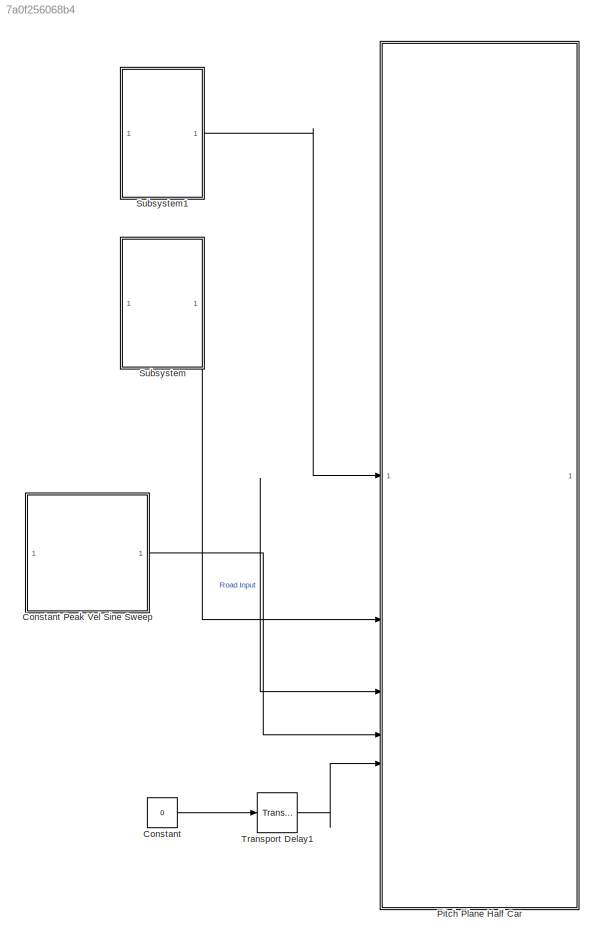
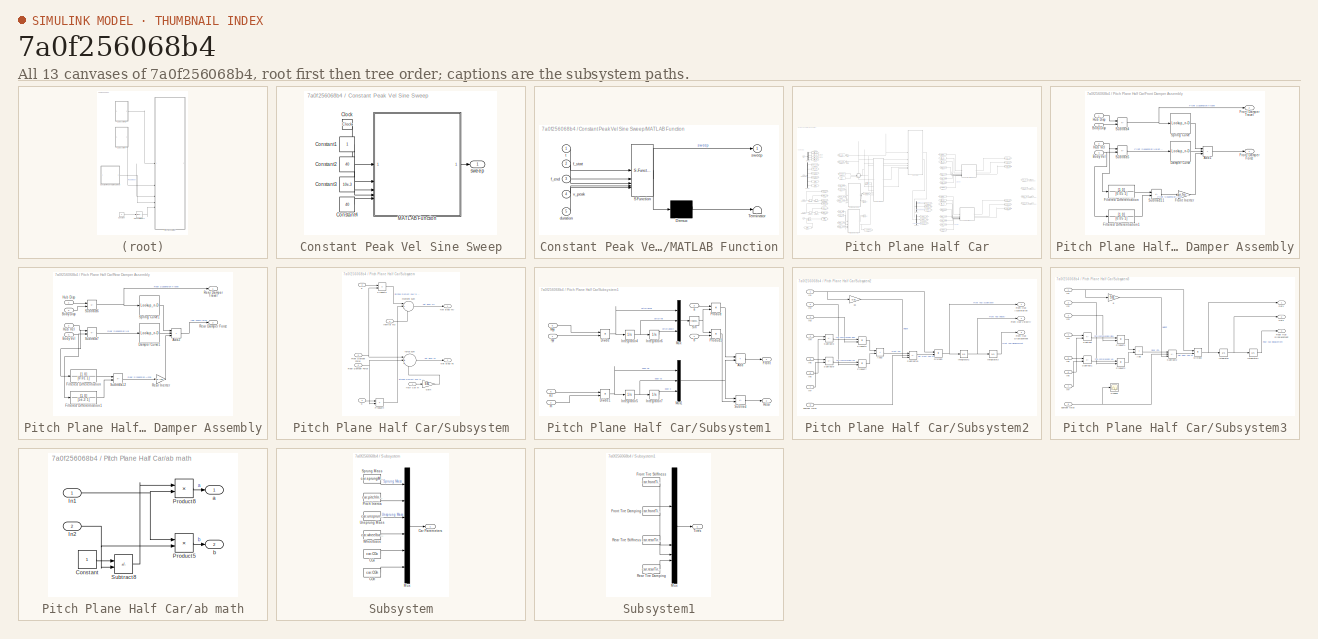
[diagram: thumbnail index - all 13 canvases of the model, root first then tree order]
MODEL slx_7a0f256068b4
KIND model
CONFIG AbsTol = auto
CONFIG EnableMultiTasking = off
CONFIG FixedStep = 1e-3
CONFIG MaxStep = 0.01
CONFIG MinStep = auto
CONFIG RelTol = 5e-5
CONFIG SampleTimeConstraint = Unconstrained
CONFIG SolverName = VariableStepAuto
CONFIG StartTime = 0.0
CONFIG StopTime = 40.0
BLOCK [Constant] Constant
  Value = 0
BLOCK [SubSystem] Constant Peak Vel Sine Sweep
BLOCK [Clock] Constant Peak Vel Sine Sweep/Clock
BLOCK [Constant] Constant Peak Vel Sine Sweep/Constant1
BLOCK [Constant] Constant Peak Vel Sine Sweep/Constant2
  Value = 40
BLOCK [Constant] Constant Peak Vel Sine Sweep/Constant3
  Value = 10e-3
BLOCK [Constant] Constant Peak Vel Sine Sweep/Constant4
  Value = 40
BLOCK [SubSystem] Constant Peak Vel Sine Sweep/MATLAB Function
  ErrorFcn = Stateflow.Translate.translate
  PermitHierarchicalResolution = ExplicitOnly
  SFBlockType = MATLAB Function
  TreatAsAtomicUnit = on
BLOCK [Demux] Constant Peak Vel Sine Sweep/MATLAB Function/ Demux 
  Outputs = 1
BLOCK [S-Function] Constant Peak Vel Sine Sweep/MATLAB Function/ SFunction 
  EnableBusSupport = on
  FunctionName = sf_sfun
  PortCounts = [5 2]
  SFcnIsStateOwnerBlock = off
  SFunctionDeploymentMode = off
  Tag = Stateflow S-Function 2
BLOCK [Terminator] Constant Peak Vel Sine Sweep/MATLAB Function/ Terminator 
BLOCK [Inport] Constant Peak Vel Sine Sweep/MATLAB Function/duration
  Port = 5
BLOCK [Inport] Constant Peak Vel Sine Sweep/MATLAB Function/f_end
  Port = 3
BLOCK [Inport] Constant Peak Vel Sine Sweep/MATLAB Function/f_start
  Port = 2
BLOCK [Outport] Constant Peak Vel Sine Sweep/MATLAB Function/sweep
BLOCK [Inport] Constant Peak Vel Sine Sweep/MATLAB Function/t
BLOCK [Inport] Constant Peak Vel Sine Sweep/MATLAB Function/v_peak
  Port = 4
BLOCK [Outport] Constant Peak Vel Sine Sweep/sweep
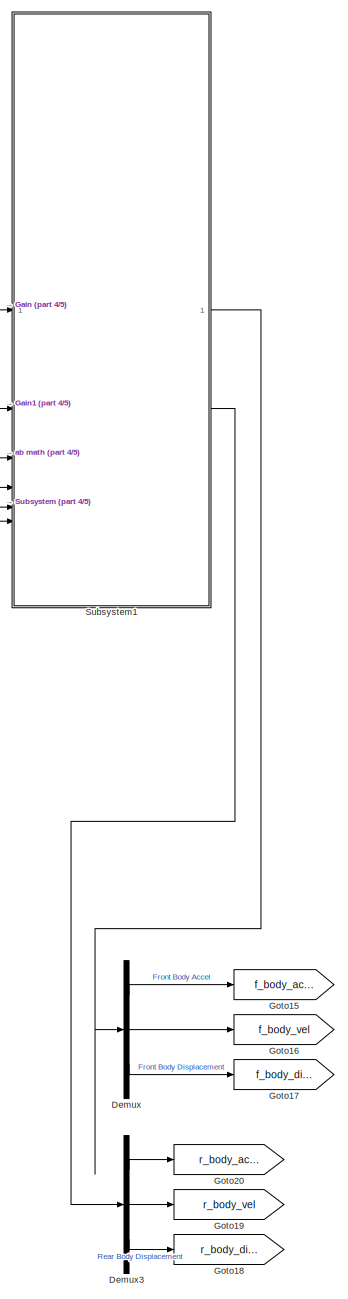
[diagram: Pitch Plane Half Car - part 1/5, center side, full height]
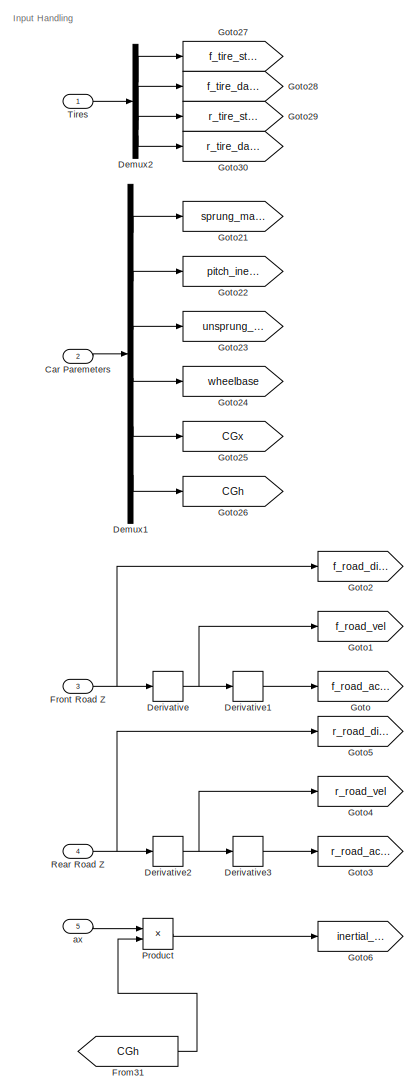
[diagram: Pitch Plane Half Car - part 2/5, left side, full height]
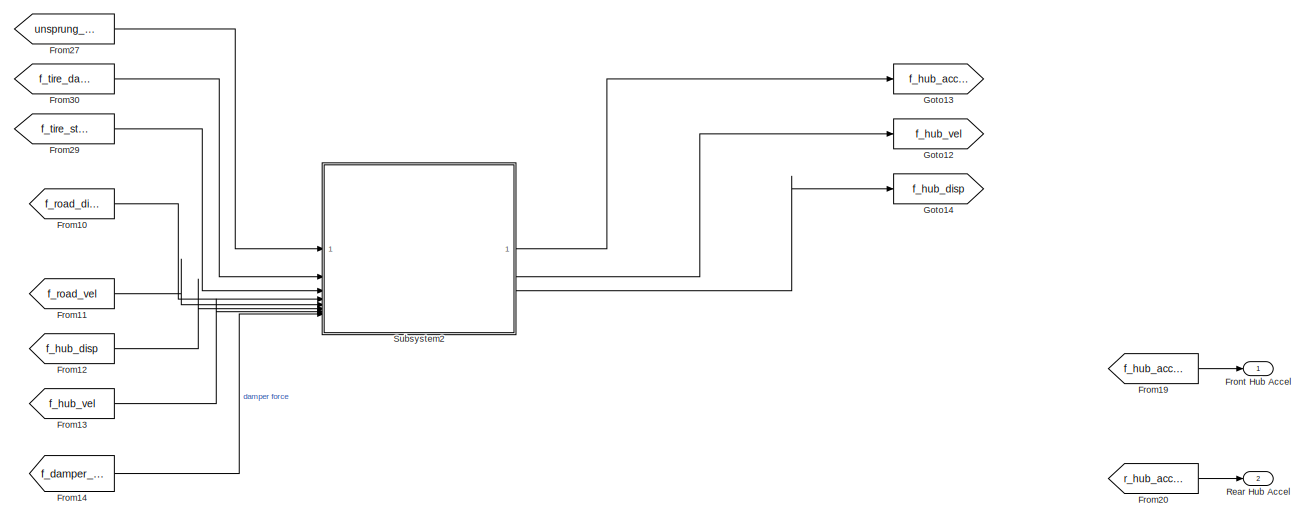
[diagram: Pitch Plane Half Car - part 3/5, middle right region]
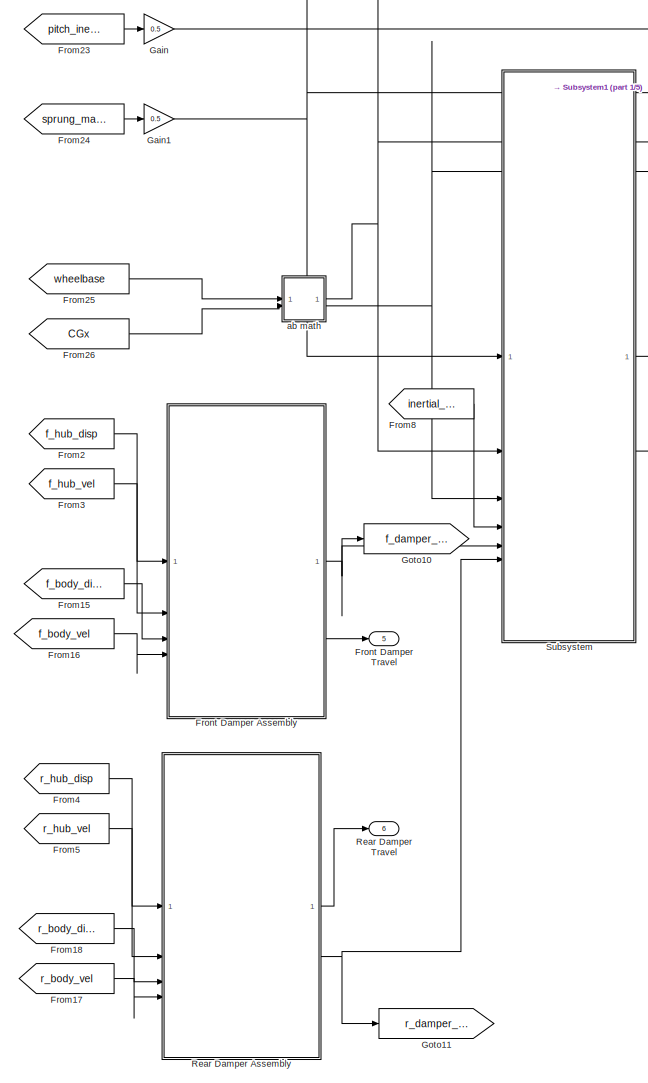
[diagram: Pitch Plane Half Car - part 4/5, left side, full height]
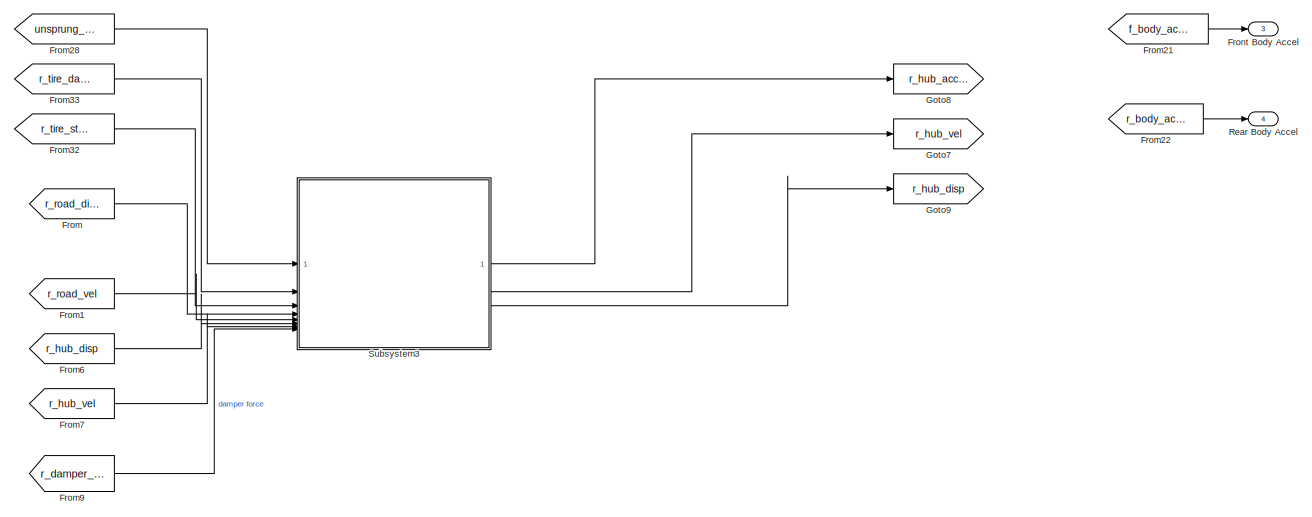
[diagram: Pitch Plane Half Car - part 5/5, bottom right region]
BLOCK [SubSystem] Pitch Plane Half Car
BLOCK [Inport] Pitch Plane Half Car/Car Paremeters
  Port = 2
BLOCK [Demux] Pitch Plane Half Car/Demux
  Outputs = 3
BLOCK [Demux] Pitch Plane Half Car/Demux1
  Outputs = 6
BLOCK [Demux] Pitch Plane Half Car/Demux2
BLOCK [Demux] Pitch Plane Half Car/Demux3
  Outputs = 3
BLOCK [Derivative] Pitch Plane Half Car/Derivative
BLOCK [Derivative] Pitch Plane Half Car/Derivative1
BLOCK [Derivative] Pitch Plane Half Car/Derivative2
BLOCK [Derivative] Pitch Plane Half Car/Derivative3
BLOCK [From] Pitch Plane Half Car/From
  GotoTag = r_road_disp
BLOCK [From] Pitch Plane Half Car/From1
  GotoTag = r_road_vel
BLOCK [From] Pitch Plane Half Car/From10
  GotoTag = f_road_disp
BLOCK [From] Pitch Plane Half Car/From11
  GotoTag = f_road_vel
BLOCK [From] Pitch Plane Half Car/From12
  GotoTag = f_hub_disp
BLOCK [From] Pitch Plane Half Car/From13
  GotoTag = f_hub_vel
BLOCK [From] Pitch Plane Half Car/From14
  GotoTag = f_damper_force
BLOCK [From] Pitch Plane Half Car/From15
  GotoTag = f_body_disp
BLOCK [From] Pitch Plane Half Car/From16
  GotoTag = f_body_vel
BLOCK [From] Pitch Plane Half Car/From17
  GotoTag = r_body_vel
BLOCK [From] Pitch Plane Half Car/From18
  GotoTag = r_body_disp
BLOCK [From] Pitch Plane Half Car/From19
  GotoTag = f_hub_accel
BLOCK [From] Pitch Plane Half Car/From2
  GotoTag = f_hub_disp
BLOCK [From] Pitch Plane Half Car/From20
  GotoTag = r_hub_accel
BLOCK [From] Pitch Plane Half Car/From21
  GotoTag = f_body_accel
BLOCK [From] Pitch Plane Half Car/From22
  GotoTag = r_body_accel
BLOCK [From] Pitch Plane Half Car/From23
  GotoTag = pitch_inertia
BLOCK [From] Pitch Plane Half Car/From24
  GotoTag = sprung_mass
BLOCK [From] Pitch Plane Half Car/From25
  GotoTag = wheelbase
BLOCK [From] Pitch Plane Half Car/From26
  GotoTag = CGx
BLOCK [From] Pitch Plane Half Car/From27
  GotoTag = unsprung_mass
BLOCK [From] Pitch Plane Half Car/From28
  GotoTag = unsprung_mass
BLOCK [From] Pitch Plane Half Car/From29
  GotoTag = f_tire_stiffness
BLOCK [From] Pitch Plane Half Car/From3
  GotoTag = f_hub_vel
BLOCK [From] Pitch Plane Half Car/From30
  GotoTag = f_tire_damping
BLOCK [From] Pitch Plane Half Car/From31
  GotoTag = CGh
BLOCK [From] Pitch Plane Half Car/From32
  GotoTag = r_tire_stiffness
BLOCK [From] Pitch Plane Half Car/From33
  GotoTag = r_tire_damping
BLOCK [From] Pitch Plane Half Car/From4
  GotoTag = r_hub_disp
BLOCK [From] Pitch Plane Half Car/From5
  GotoTag = r_hub_vel
BLOCK [From] Pitch Plane Half Car/From6
  GotoTag = r_hub_disp
BLOCK [From] Pitch Plane Half Car/From7
  GotoTag = r_hub_vel
BLOCK [From] Pitch Plane Half Car/From8
  GotoTag = inertial_Mz
BLOCK [From] Pitch Plane Half Car/From9
  GotoTag = r_damper_force
BLOCK [Outport] Pitch Plane Half Car/Front Body Accel
  Port = 3
BLOCK [SubSystem] Pitch Plane Half Car/Front Damper Assembly
BLOCK [Sum] Pitch Plane Half Car/Front Damper Assembly/Add1
  IconShape = rectangular
  Inputs = +++
BLOCK [Inport] Pitch Plane Half Car/Front Damper Assembly/Body Disp
  Port = 3
BLOCK [Inport] Pitch Plane Half Car/Front Damper Assembly/Body Vel
  Port = 4
BLOCK [Lookup_n-D] Pitch Plane Half Car/Front Damper Assembly/Damper Curve
  BeginIndexSearchUsingPreviousIndexResult = on
  BreakpointsForDimension1 = f_damper_curve_x
  DiagnosticForOutOfRangeInput = Warning
  IndexSearchMethod = Linear search
  InputPortMap = u0
  InternalRulePriority = Speed
  NumberOfTableDimensions = 1
  RndMeth = Simplest
  Table = f_damper_curve_y
BLOCK [TransferFcn] Pitch Plane Half Car/Front Damper Assembly/Filtered Differentiation
  Denominator = [0.05 1]
  Numerator = [1 0]
BLOCK [TransferFcn] Pitch Plane Half Car/Front Damper Assembly/Filtered Differentiation1
  Denominator = [0.05 1]
  Numerator = [1 0]
BLOCK [Outport] Pitch Plane Half Car/Front Damper Assembly/Front Damper Force
BLOCK [Outport] Pitch Plane Half Car/Front Damper Assembly/Front Damper Travel
  Port = 2
BLOCK [Gain] Pitch Plane Half Car/Front Damper Assembly/Front Inerter
  Gain = car.frontInertance
BLOCK [Inport] Pitch Plane Half Car/Front Damper Assembly/Hub Disp
BLOCK [Inport] Pitch Plane Half Car/Front Damper Assembly/Hub Vel
  Port = 2
BLOCK [Lookup_n-D] Pitch Plane Half Car/Front Damper Assembly/Spring Curve
  BreakpointsForDimension1 = f_spring_curve_x
  InputPortMap = u0
  InternalRulePriority = Speed
  InterpMethod = Linear Lagrange
  NumberOfTableDimensions = 1
  RndMeth = Simplest
  Table = f_spring_curve_y
BLOCK [Sum] Pitch Plane Half Car/Front Damper Assembly/Subtract11
  IconShape = rectangular
  Inputs = +-
BLOCK [Sum] Pitch Plane Half Car/Front Damper Assembly/Subtract4
  IconShape = rectangular
  Inputs = +-
BLOCK [Sum] Pitch Plane Half Car/Front Damper Assembly/Subtract5
  IconShape = rectangular
  Inputs = +-
BLOCK [Outport] Pitch Plane Half Car/Front Damper Travel
  Port = 5
BLOCK [Outport] Pitch Plane Half Car/Front Hub Accel
BLOCK [Inport] Pitch Plane Half Car/Front Road Z
  Port = 3
BLOCK [Gain] Pitch Plane Half Car/Gain
  Gain = 0.5
BLOCK [Gain] Pitch Plane Half Car/Gain1
  Gain = 0.5
BLOCK [Goto] Pitch Plane Half Car/Goto
  GotoTag = f_road_accel
BLOCK [Goto] Pitch Plane Half Car/Goto1
  GotoTag = f_road_vel
BLOCK [Goto] Pitch Plane Half Car/Goto10
  GotoTag = f_damper_force
BLOCK [Goto] Pitch Plane Half Car/Goto11
  GotoTag = r_damper_force
BLOCK [Goto] Pitch Plane Half Car/Goto12
  GotoTag = f_hub_vel
BLOCK [Goto] Pitch Plane Half Car/Goto13
  GotoTag = f_hub_accel
BLOCK [Goto] Pitch Plane Half Car/Goto14
  GotoTag = f_hub_disp
BLOCK [Goto] Pitch Plane Half Car/Goto15
  GotoTag = f_body_accel
BLOCK [Goto] Pitch Plane Half Car/Goto16
  GotoTag = f_body_vel
BLOCK [Goto] Pitch Plane Half Car/Goto17
  GotoTag = f_body_disp
BLOCK [Goto] Pitch Plane Half Car/Goto18
  GotoTag = r_body_disp
BLOCK [Goto] Pitch Plane Half Car/Goto19
  GotoTag = r_body_vel
BLOCK [Goto] Pitch Plane Half Car/Goto2
  GotoTag = f_road_disp
BLOCK [Goto] Pitch Plane Half Car/Goto20
  GotoTag = r_body_accel
BLOCK [Goto] Pitch Plane Half Car/Goto21
  GotoTag = sprung_mass
BLOCK [Goto] Pitch Plane Half Car/Goto22
  GotoTag = pitch_inertia
BLOCK [Goto] Pitch Plane Half Car/Goto23
  GotoTag = unsprung_mass
BLOCK [Goto] Pitch Plane Half Car/Goto24
  GotoTag = wheelbase
BLOCK [Goto] Pitch Plane Half Car/Goto25
  GotoTag = CGx
BLOCK [Goto] Pitch Plane Half Car/Goto26
  GotoTag = CGh
BLOCK [Goto] Pitch Plane Half Car/Goto27
  GotoTag = f_tire_stiffness
BLOCK [Goto] Pitch Plane Half Car/Goto28
  GotoTag = f_tire_damping
BLOCK [Goto] Pitch Plane Half Car/Goto29
  GotoTag = r_tire_stiffness
BLOCK [Goto] Pitch Plane Half Car/Goto3
  GotoTag = r_road_accel
BLOCK [Goto] Pitch Plane Half Car/Goto30
  GotoTag = r_tire_damping
BLOCK [Goto] Pitch Plane Half Car/Goto4
  GotoTag = r_road_vel
BLOCK [Goto] Pitch Plane Half Car/Goto5
  GotoTag = r_road_disp
BLOCK [Goto] Pitch Plane Half Car/Goto6
  GotoTag = inertial_Mz
BLOCK [Goto] Pitch Plane Half Car/Goto7
  GotoTag = r_hub_vel
BLOCK [Goto] Pitch Plane Half Car/Goto8
  GotoTag = r_hub_accel
BLOCK [Goto] Pitch Plane Half Car/Goto9
  GotoTag = r_hub_disp
BLOCK [Product] Pitch Plane Half Car/Product
BLOCK [Outport] Pitch Plane Half Car/Rear Body Accel
  Port = 4
BLOCK [SubSystem] Pitch Plane Half Car/Rear Damper Assembly
BLOCK [Sum] Pitch Plane Half Car/Rear Damper Assembly/Add2
  IconShape = rectangular
  Inputs = +++
BLOCK [Inport] Pitch Plane Half Car/Rear Damper Assembly/Body Disp
  Port = 3
BLOCK [Inport] Pitch Plane Half Car/Rear Damper Assembly/Body Vel
  Port = 4
BLOCK [Lookup_n-D] Pitch Plane Half Car/Rear Damper Assembly/Damper Curve1
  BeginIndexSearchUsingPreviousIndexResult = on
  BreakpointsForDimension1 = r_damper_curve_x
  DiagnosticForOutOfRangeInput = Warning
  IndexSearchMethod = Linear search
  InputPortMap = u0
  InternalRulePriority = Speed
  NumberOfTableDimensions = 1
  RndMeth = Simplest
  Table = r_damper_curve_y
BLOCK [TransferFcn] Pitch Plane Half Car/Rear Damper Assembly/Filtered Differentiation
  Denominator = [0.01 1]
  Numerator = [1 0]
BLOCK [TransferFcn] Pitch Plane Half Car/Rear Damper Assembly/Filtered Differentiation1
  Denominator = [5e-3 1]
  Numerator = [1 0]
BLOCK [Inport] Pitch Plane Half Car/Rear Damper Assembly/Hub Disp
BLOCK [Inport] Pitch Plane Half Car/Rear Damper Assembly/Hub Vel
  Port = 2
BLOCK [Outport] Pitch Plane Half Car/Rear Damper Assembly/Rear Damper Force
  Port = 2
BLOCK [Outport] Pitch Plane Half Car/Rear Damper Assembly/Rear Damper Travel
BLOCK [Gain] Pitch Plane Half Car/Rear Damper Assembly/Rear Inerter
  Gain = car.rearInertance
BLOCK [Lookup_n-D] Pitch Plane Half Car/Rear Damper Assembly/Spring Curve1
  BreakpointsForDimension1 = r_spring_curve_x
  InputPortMap = u0
  InternalRulePriority = Speed
  InterpMethod = Linear Lagrange
  NumberOfTableDimensions = 1
  RndMeth = Simplest
  Table = r_spring_curve_y
BLOCK [Sum] Pitch Plane Half Car/Rear Damper Assembly/Subtract12
  IconShape = rectangular
  Inputs = +-
BLOCK [Sum] Pitch Plane Half Car/Rear Damper Assembly/Subtract6
  IconShape = rectangular
  Inputs = +-
BLOCK [Sum] Pitch Plane Half Car/Rear Damper Assembly/Subtract7
  IconShape = rectangular
  Inputs = +-
BLOCK [Outport] Pitch Plane Half Car/Rear Damper Travel
  Port = 6
BLOCK [Outport] Pitch Plane Half Car/Rear Hub Accel
  Port = 2
BLOCK [Inport] Pitch Plane Half Car/Rear Road Z
  Port = 4
BLOCK [SubSystem] Pitch Plane Half Car/Subsystem
BLOCK [Inport] Pitch Plane Half Car/Subsystem/Front Damper Force
  Port = 5
BLOCK [Gain] Pitch Plane Half Car/Subsystem/Gain
  Gain = 9.81
BLOCK [Inport] Pitch Plane Half Car/Subsystem/Half Car m
BLOCK [Inport] Pitch Plane Half Car/Subsystem/Inertial Mz
  Port = 4
BLOCK [Outport] Pitch Plane Half Car/Subsystem/Net Body Fz
  Port = 2
BLOCK [Outport] Pitch Plane Half Car/Subsystem/Net Body My
BLOCK [Product] Pitch Plane Half Car/Subsystem/Product3
BLOCK [Product] Pitch Plane Half Car/Subsystem/Product4
BLOCK [Inport] Pitch Plane Half Car/Subsystem/Rear Damper Force
  Port = 6
BLOCK [Inport] Pitch Plane Half Car/Subsystem/a
  Port = 2
BLOCK [Inport] Pitch Plane Half Car/Subsystem/b
  Port = 3
BLOCK [Sum] Pitch Plane Half Car/Subsystem/force sum
  Inputs = |++-
BLOCK [Sum] Pitch Plane Half Car/Subsystem/moment sum
  Inputs = |+-+
BLOCK [SubSystem] Pitch Plane Half Car/Subsystem1
BLOCK [Sum] Pitch Plane Half Car/Subsystem1/Add
  IconShape = rectangular
BLOCK [Product] Pitch Plane Half Car/Subsystem1/Divide
  Inputs = */
BLOCK [Product] Pitch Plane Half Car/Subsystem1/Divide1
  Inputs = */
BLOCK [Outport] Pitch Plane Half Car/Subsystem1/Front
BLOCK [Integrator] Pitch Plane Half Car/Subsystem1/Integrator4
BLOCK [Integrator] Pitch Plane Half Car/Subsystem1/Integrator5
BLOCK [Integrator] Pitch Plane Half Car/Subsystem1/Integrator6
BLOCK [Integrator] Pitch Plane Half Car/Subsystem1/Integrator7
BLOCK [Inport] Pitch Plane Half Car/Subsystem1/Iyy
BLOCK [Mux] Pitch Plane Half Car/Subsystem1/Mux
  DisplayOption = bar
  Inputs = 3
BLOCK [Mux] Pitch Plane Half Car/Subsystem1/Mux1
  DisplayOption = bar
  Inputs = 3
BLOCK [Inport] Pitch Plane Half Car/Subsystem1/Myy
  Port = 5
BLOCK [Product] Pitch Plane Half Car/Subsystem1/Product
BLOCK [Product] Pitch Plane Half Car/Subsystem1/Product1
BLOCK [Outport] Pitch Plane Half Car/Subsystem1/Rear
  Port = 2
BLOCK [Trigonometry] Pitch Plane Half Car/Subsystem1/Sin
BLOCK [Sum] Pitch Plane Half Car/Subsystem1/Subtract
  IconShape = rectangular
  Inputs = +-
BLOCK [Inport] Pitch Plane Half Car/Subsystem1/a
  Port = 3
BLOCK [Inport] Pitch Plane Half Car/Subsystem1/az
  Port = 6
BLOCK [Inport] Pitch Plane Half Car/Subsystem1/b
  Port = 4
BLOCK [Inport] Pitch Plane Half Car/Subsystem1/m
  Port = 2
BLOCK [SubSystem] Pitch Plane Half Car/Subsystem2
BLOCK [Sum] Pitch Plane Half Car/Subsystem2/Add3
  IconShape = rectangular
BLOCK [Product] Pitch Plane Half Car/Subsystem2/Divide3
  Inputs = /*
BLOCK [Outport] Pitch Plane Half Car/Subsystem2/Front Hub Acceleration
BLOCK [Outport] Pitch Plane Half Car/Subsystem2/Front Hub Displacement
  Port = 3
BLOCK [Outport] Pitch Plane Half Car/Subsystem2/Front Hub Velocity
  Port = 2
BLOCK [Inport] Pitch Plane Half Car/Subsystem2/In1
BLOCK [Inport] Pitch Plane Half Car/Subsystem2/In2
  Port = 2
BLOCK [Inport] Pitch Plane Half Car/Subsystem2/In3
  Port = 3
BLOCK [Inport] Pitch Plane Half Car/Subsystem2/In4
  Port = 4
BLOCK [Inport] Pitch Plane Half Car/Subsystem2/In5
  Port = 5
BLOCK [Inport] Pitch Plane Half Car/Subsystem2/In6
  Port = 6
BLOCK [Inport] Pitch Plane Half Car/Subsystem2/In7
  Port = 7
BLOCK [Integrator] Pitch Plane Half Car/Subsystem2/Integrator2
BLOCK [Integrator] Pitch Plane Half Car/Subsystem2/Integrator3
BLOCK [Product] Pitch Plane Half Car/Subsystem2/Product6
BLOCK [Product] Pitch Plane Half Car/Subsystem2/Product7
BLOCK [Sum] Pitch Plane Half Car/Subsystem2/Subtract10
  IconShape = rectangular
  Inputs = +--
BLOCK [Sum] Pitch Plane Half Car/Subsystem2/Subtract3
  IconShape = rectangular
  Inputs = +-
BLOCK [Sum] Pitch Plane Half Car/Subsystem2/Subtract9
  IconShape = rectangular
  Inputs = +-
BLOCK [Inport] Pitch Plane Half Car/Subsystem2/damper force
  Port = 8
BLOCK [Gain] Pitch Plane Half Car/Subsystem2/g1
  Gain = 9.81
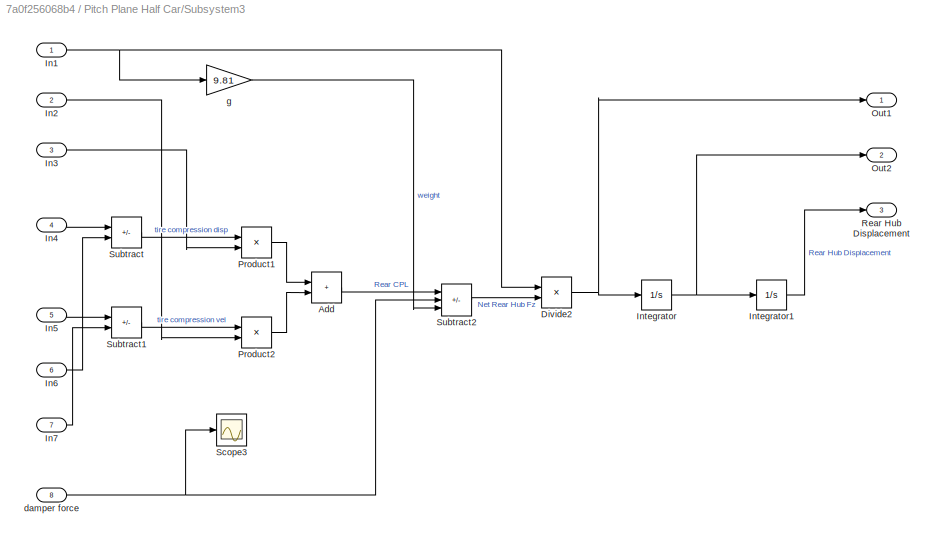
BLOCK [SubSystem] Pitch Plane Half Car/Subsystem3
BLOCK [Sum] Pitch Plane Half Car/Subsystem3/Add
  IconShape = rectangular
BLOCK [Product] Pitch Plane Half Car/Subsystem3/Divide2
  Inputs = /*
BLOCK [Inport] Pitch Plane Half Car/Subsystem3/In1
BLOCK [Inport] Pitch Plane Half Car/Subsystem3/In2
  Port = 2
BLOCK [Inport] Pitch Plane Half Car/Subsystem3/In3
  Port = 3
BLOCK [Inport] Pitch Plane Half Car/Subsystem3/In4
  Port = 4
BLOCK [Inport] Pitch Plane Half Car/Subsystem3/In5
  Port = 5
BLOCK [Inport] Pitch Plane Half Car/Subsystem3/In6
  Port = 6
BLOCK [Inport] Pitch Plane Half Car/Subsystem3/In7
  Port = 7
BLOCK [Integrator] Pitch Plane Half Car/Subsystem3/Integrator
BLOCK [Integrator] Pitch Plane Half Car/Subsystem3/Integrator1
BLOCK [Outport] Pitch Plane Half Car/Subsystem3/Out1
BLOCK [Outport] Pitch Plane Half Car/Subsystem3/Out2
  Port = 2
BLOCK [Product] Pitch Plane Half Car/Subsystem3/Product1
BLOCK [Product] Pitch Plane Half Car/Subsystem3/Product2
BLOCK [Outport] Pitch Plane Half Car/Subsystem3/Rear Hub Displacement
  Port = 3
BLOCK [Scope] Pitch Plane Half Car/Subsystem3/Scope3
  Floating = off
  NumInputPorts = 1
  ScopeSpecificationString = C++SS(StrPVP('ActiveDisplayYMinimum','-476.57743'),StrPVP('ActiveDisplayYMaximum','1426.74238'),StrPVP('DataLoggingVariableName','ScopeData4'),StrPVP('LimitDataPoints','on'),StrPVP('DataFormat','Array'),StrPVP('Decimation','1'),StrPVP('BlockParamSampleInput','off'))
BLOCK [Sum] Pitch Plane Half Car/Subsystem3/Subtract
  IconShape = rectangular
  Inputs = +-
BLOCK [Sum] Pitch Plane Half Car/Subsystem3/Subtract1
  IconShape = rectangular
  Inputs = +-
BLOCK [Sum] Pitch Plane Half Car/Subsystem3/Subtract2
  IconShape = rectangular
  Inputs = +--
BLOCK [Inport] Pitch Plane Half Car/Subsystem3/damper force
  Port = 8
BLOCK [Gain] Pitch Plane Half Car/Subsystem3/g
  Gain = 9.81
BLOCK [Inport] Pitch Plane Half Car/Tires
BLOCK [SubSystem] Pitch Plane Half Car/ab math
BLOCK [Constant] Pitch Plane Half Car/ab math/Constant
BLOCK [Inport] Pitch Plane Half Car/ab math/In1
BLOCK [Inport] Pitch Plane Half Car/ab math/In2
  Port = 2
BLOCK [Product] Pitch Plane Half Car/ab math/Product5
BLOCK [Product] Pitch Plane Half Car/ab math/Product8
BLOCK [Sum] Pitch Plane Half Car/ab math/Subtract8
  IconShape = rectangular
  Inputs = +-
BLOCK [Outport] Pitch Plane Half Car/ab math/a
BLOCK [Outport] Pitch Plane Half Car/ab math/b
  Port = 2
BLOCK [Inport] Pitch Plane Half Car/ax
  Port = 5
BLOCK [SubSystem] Subsystem
BLOCK [Constant] Subsystem/CGh
  Value = car.CGh
BLOCK [Constant] Subsystem/CGx
  Value = car.CGx
BLOCK [Outport] Subsystem/Car Paremeters
BLOCK [Mux] Subsystem/Mux
  DisplayOption = bar
  Inputs = 6
BLOCK [Constant] Subsystem/Pitch Inertia
  Value = car.pitchInertia
BLOCK [Constant] Subsystem/Sprung Mass
  Value = car.sprungMass
BLOCK [Constant] Subsystem/Unsprung Mass
  Value = car.unsprungMass
BLOCK [Constant] Subsystem/Wheelbase
  Value = car.wheelbase
BLOCK [SubSystem] Subsystem1
BLOCK [Constant] Subsystem1/Front Tire Damping
  Value = car.frontTireDamping
BLOCK [Constant] Subsystem1/Front Tire Stiffness
  Value = car.frontTireStiffness
BLOCK [Mux] Subsystem1/Mux
  DisplayOption = bar
BLOCK [Constant] Subsystem1/Rear Tire Damping
  Value = car.rearTireDamping
BLOCK [Constant] Subsystem1/Rear Tire Stiffness
  Value = car.rearTireStiffness
BLOCK [Outport] Subsystem1/Tires
BLOCK [TransportDelay] Transport Delay1
  Commented = through
  DelayTime = 3
ANNOTATION Pitch Plane Half Car: Input Handling
LINE Constant Peak Vel Sine Sweep/Clock:1 -> Constant Peak Vel Sine Sweep/MATLAB Function:1
LINE Constant Peak Vel Sine Sweep/Constant1:1 -> Constant Peak Vel Sine Sweep/MATLAB Function:2
LINE Constant Peak Vel Sine Sweep/Constant2:1 -> Constant Peak Vel Sine Sweep/MATLAB Function:3
LINE Constant Peak Vel Sine Sweep/Constant3:1 -> Constant Peak Vel Sine Sweep/MATLAB Function:4
LINE Constant Peak Vel Sine Sweep/Constant4:1 -> Constant Peak Vel Sine Sweep/MATLAB Function:5
LINE Constant Peak Vel Sine Sweep/MATLAB Function:1 -> Constant Peak Vel Sine Sweep/sweep:1
NET Constant Peak Vel Sine Sweep:1 -> Pitch Plane Half Car:3, Pitch Plane Half Car:4
LINE Constant:1 -> Transport Delay1:1
LINE Pitch Plane Half Car/Car Paremeters:1 -> Pitch Plane Half Car/Demux1:1
LINE Pitch Plane Half Car/Demux1:1 -> Pitch Plane Half Car/Goto21:1
LINE Pitch Plane Half Car/Demux1:2 -> Pitch Plane Half Car/Goto22:1
LINE Pitch Plane Half Car/Demux1:3 -> Pitch Plane Half Car/Goto23:1
LINE Pitch Plane Half Car/Demux1:4 -> Pitch Plane Half Car/Goto24:1
LINE Pitch Plane Half Car/Demux1:5 -> Pitch Plane Half Car/Goto25:1
LINE Pitch Plane Half Car/Demux1:6 -> Pitch Plane Half Car/Goto26:1
LINE Pitch Plane Half Car/Demux2:1 -> Pitch Plane Half Car/Goto27:1
LINE Pitch Plane Half Car/Demux2:2 -> Pitch Plane Half Car/Goto28:1
LINE Pitch Plane Half Car/Demux2:3 -> Pitch Plane Half Car/Goto29:1
LINE Pitch Plane Half Car/Demux2:4 -> Pitch Plane Half Car/Goto30:1
LINE Pitch Plane Half Car/Demux3:1 -> Pitch Plane Half Car/Goto20:1
LINE Pitch Plane Half Car/Demux3:2 -> Pitch Plane Half Car/Goto19:1
LINE Pitch Plane Half Car/Demux3:3 -> Pitch Plane Half Car/Goto18:1
LINE Pitch Plane Half Car/Demux:1 -> Pitch Plane Half Car/Goto15:1
LINE Pitch Plane Half Car/Demux:2 -> Pitch Plane Half Car/Goto16:1
LINE Pitch Plane Half Car/Demux:3 -> Pitch Plane Half Car/Goto17:1
LINE Pitch Plane Half Car/Derivative1:1 -> Pitch Plane Half Car/Goto:1
NET Pitch Plane Half Car/Derivative2:1 -> Pitch Plane Half Car/Derivative3:1, Pitch Plane Half Car/Goto4:1
LINE Pitch Plane Half Car/Derivative3:1 -> Pitch Plane Half Car/Goto3:1
NET Pitch Plane Half Car/Derivative:1 -> Pitch Plane Half Car/Derivative1:1, Pitch Plane Half Car/Goto1:1
LINE Pitch Plane Half Car/From10:1 -> Pitch Plane Half Car/Subsystem2:4
LINE Pitch Plane Half Car/From11:1 -> Pitch Plane Half Car/Subsystem2:5
LINE Pitch Plane Half Car/From12:1 -> Pitch Plane Half Car/Subsystem2:6
LINE Pitch Plane Half Car/From13:1 -> Pitch Plane Half Car/Subsystem2:7
LINE Pitch Plane Half Car/From14:1 -> Pitch Plane Half Car/Subsystem2:8
LINE Pitch Plane Half Car/From15:1 -> Pitch Plane Half Car/Front Damper Assembly:3
LINE Pitch Plane Half Car/From16:1 -> Pitch Plane Half Car/Front Damper Assembly:4
LINE Pitch Plane Half Car/From17:1 -> Pitch Plane Half Car/Rear Damper Assembly:4
LINE Pitch Plane Half Car/From18:1 -> Pitch Plane Half Car/Rear Damper Assembly:3
LINE Pitch Plane Half Car/From19:1 -> Pitch Plane Half Car/Front Hub Accel:1
LINE Pitch Plane Half Car/From1:1 -> Pitch Plane Half Car/Subsystem3:5
LINE Pitch Plane Half Car/From20:1 -> Pitch Plane Half Car/Rear Hub Accel:1
LINE Pitch Plane Half Car/From21:1 -> Pitch Plane Half Car/Front Body Accel:1
LINE Pitch Plane Half Car/From22:1 -> Pitch Plane Half Car/Rear Body Accel:1
LINE Pitch Plane Half Car/From23:1 -> Pitch Plane Half Car/Gain:1
LINE Pitch Plane Half Car/From24:1 -> Pitch Plane Half Car/Gain1:1
LINE Pitch Plane Half Car/From25:1 -> Pitch Plane Half Car/ab math:1
LINE Pitch Plane Half Car/From26:1 -> Pitch Plane Half Car/ab math:2
LINE Pitch Plane Half Car/From27:1 -> Pitch Plane Half Car/Subsystem2:1
LINE Pitch Plane Half Car/From28:1 -> Pitch Plane Half Car/Subsystem3:1
LINE Pitch Plane Half Car/From29:1 -> Pitch Plane Half Car/Subsystem2:3
LINE Pitch Plane Half Car/From2:1 -> Pitch Plane Half Car/Front Damper Assembly:1
LINE Pitch Plane Half Car/From30:1 -> Pitch Plane Half Car/Subsystem2:2
LINE Pitch Plane Half Car/From31:1 -> Pitch Plane Half Car/Product:2
LINE Pitch Plane Half Car/From32:1 -> Pitch Plane Half Car/Subsystem3:3
LINE Pitch Plane Half Car/From33:1 -> Pitch Plane Half Car/Subsystem3:2
LINE Pitch Plane Half Car/From3:1 -> Pitch Plane Half Car/Front Damper Assembly:2
LINE Pitch Plane Half Car/From4:1 -> Pitch Plane Half Car/Rear Damper Assembly:1
LINE Pitch Plane Half Car/From5:1 -> Pitch Plane Half Car/Rear Damper Assembly:2
LINE Pitch Plane Half Car/From6:1 -> Pitch Plane Half Car/Subsystem3:6
LINE Pitch Plane Half Car/From7:1 -> Pitch Plane Half Car/Subsystem3:7
LINE Pitch Plane Half Car/From8:1 -> Pitch Plane Half Car/Subsystem:4
LINE Pitch Plane Half Car/From9:1 -> Pitch Plane Half Car/Subsystem3:8
LINE Pitch Plane Half Car/From:1 -> Pitch Plane Half Car/Subsystem3:4
LINE Pitch Plane Half Car/Front Damper Assembly/Add1:1 -> Pitch Plane Half Car/Front Damper Assembly/Front Damper Force:1
LINE Pitch Plane Half Car/Front Damper Assembly/Body Disp:1 -> Pitch Plane Half Car/Front Damper Assembly/Subtract4:2
NET Pitch Plane Half Car/Front Damper Assembly/Body Vel:1 -> Pitch Plane Half Car/Front Damper Assembly/Filtered Differentiation1:1, Pitch Plane Half Car/Front Damper Assembly/Subtract5:2
LINE Pitch Plane Half Car/Front Damper Assembly/Damper Curve:1 -> Pitch Plane Half Car/Front Damper Assembly/Add1:2
LINE Pitch Plane Half Car/Front Damper Assembly/Filtered Differentiation1:1 -> Pitch Plane Half Car/Front Damper Assembly/Subtract11:2
LINE Pitch Plane Half Car/Front Damper Assembly/Filtered Differentiation:1 -> Pitch Plane Half Car/Front Damper Assembly/Subtract11:1
LINE Pitch Plane Half Car/Front Damper Assembly/Front Inerter:1 -> Pitch Plane Half Car/Front Damper Assembly/Add1:3
LINE Pitch Plane Half Car/Front Damper Assembly/Hub Disp:1 -> Pitch Plane Half Car/Front Damper Assembly/Subtract4:1
NET Pitch Plane Half Car/Front Damper Assembly/Hub Vel:1 -> Pitch Plane Half Car/Front Damper Assembly/Filtered Differentiation:1, Pitch Plane Half Car/Front Damper Assembly/Subtract5:1
LINE Pitch Plane Half Car/Front Damper Assembly/Spring Curve:1 -> Pitch Plane Half Car/Front Damper Assembly/Add1:1
LINE Pitch Plane Half Car/Front Damper Assembly/Subtract11:1 -> Pitch Plane Half Car/Front Damper Assembly/Front Inerter:1
NET Pitch Plane Half Car/Front Damper Assembly/Subtract4:1 -> Pitch Plane Half Car/Front Damper Assembly/Front Damper Travel:1, Pitch Plane Half Car/Front Damper Assembly/Spring Curve:1
LINE Pitch Plane Half Car/Front Damper Assembly/Subtract5:1 -> Pitch Plane Half Car/Front Damper Assembly/Damper Curve:1
NET Pitch Plane Half Car/Front Damper Assembly:1 -> Pitch Plane Half Car/Goto10:1, Pitch Plane Half Car/Subsystem:5
LINE Pitch Plane Half Car/Front Damper Assembly:2 -> Pitch Plane Half Car/Front Damper Travel:1
NET Pitch Plane Half Car/Front Road Z:1 -> Pitch Plane Half Car/Derivative:1, Pitch Plane Half Car/Goto2:1
NET Pitch Plane Half Car/Gain1:1 -> Pitch Plane Half Car/Subsystem1:2, Pitch Plane Half Car/Subsystem:1
LINE Pitch Plane Half Car/Gain:1 -> Pitch Plane Half Car/Subsystem1:1
LINE Pitch Plane Half Car/Product:1 -> Pitch Plane Half Car/Goto6:1
LINE Pitch Plane Half Car/Rear Damper Assembly/Add2:1 -> Pitch Plane Half Car/Rear Damper Assembly/Rear Damper Force:1
LINE Pitch Plane Half Car/Rear Damper Assembly/Body Disp:1 -> Pitch Plane Half Car/Rear Damper Assembly/Subtract6:2
NET Pitch Plane Half Car/Rear Damper Assembly/Body Vel:1 -> Pitch Plane Half Car/Rear Damper Assembly/Filtered Differentiation1:1, Pitch Plane Half Car/Rear Damper Assembly/Subtract7:2
LINE Pitch Plane Half Car/Rear Damper Assembly/Damper Curve1:1 -> Pitch Plane Half Car/Rear Damper Assembly/Add2:2
LINE Pitch Plane Half Car/Rear Damper Assembly/Filtered Differentiation1:1 -> Pitch Plane Half Car/Rear Damper Assembly/Subtract12:2
LINE Pitch Plane Half Car/Rear Damper Assembly/Filtered Differentiation:1 -> Pitch Plane Half Car/Rear Damper Assembly/Subtract12:1
LINE Pitch Plane Half Car/Rear Damper Assembly/Hub Disp:1 -> Pitch Plane Half Car/Rear Damper Assembly/Subtract6:1
NET Pitch Plane Half Car/Rear Damper Assembly/Hub Vel:1 -> Pitch Plane Half Car/Rear Damper Assembly/Filtered Differentiation:1, Pitch Plane Half Car/Rear Damper Assembly/Subtract7:1
LINE Pitch Plane Half Car/Rear Damper Assembly/Rear Inerter:1 -> Pitch Plane Half Car/Rear Damper Assembly/Add2:3
LINE Pitch Plane Half Car/Rear Damper Assembly/Spring Curve1:1 -> Pitch Plane Half Car/Rear Damper Assembly/Add2:1
LINE Pitch Plane Half Car/Rear Damper Assembly/Subtract12:1 -> Pitch Plane Half Car/Rear Damper Assembly/Rear Inerter:1
NET Pitch Plane Half Car/Rear Damper Assembly/Subtract6:1 -> Pitch Plane Half Car/Rear Damper Assembly/Rear Damper Travel:1, Pitch Plane Half Car/Rear Damper Assembly/Spring Curve1:1
LINE Pitch Plane Half Car/Rear Damper Assembly/Subtract7:1 -> Pitch Plane Half Car/Rear Damper Assembly/Damper Curve1:1
LINE Pitch Plane Half Car/Rear Damper Assembly:1 -> Pitch Plane Half Car/Rear Damper Travel:1
NET Pitch Plane Half Car/Rear Damper Assembly:2 -> Pitch Plane Half Car/Goto11:1, Pitch Plane Half Car/Subsystem:6
NET Pitch Plane Half Car/Rear Road Z:1 -> Pitch Plane Half Car/Derivative2:1, Pitch Plane Half Car/Goto5:1
NET Pitch Plane Half Car/Subsystem/Front Damper Force:1 -> Pitch Plane Half Car/Subsystem/Product3:2, Pitch Plane Half Car/Subsystem/force sum:1
LINE Pitch Plane Half Car/Subsystem/Gain:1 -> Pitch Plane Half Car/Subsystem/force sum:3
LINE Pitch Plane Half Car/Subsystem/Half Car m:1 -> Pitch Plane Half Car/Subsystem/Gain:1
LINE Pitch Plane Half Car/Subsystem/Inertial Mz:1 -> Pitch Plane Half Car/Subsystem/moment sum:3
LINE Pitch Plane Half Car/Subsystem/Product3:1 -> Pitch Plane Half Car/Subsystem/moment sum:1
LINE Pitch Plane Half Car/Subsystem/Product4:1 -> Pitch Plane Half Car/Subsystem/moment sum:2
NET Pitch Plane Half Car/Subsystem/Rear Damper Force:1 -> Pitch Plane Half Car/Subsystem/Product4:2, Pitch Plane Half Car/Subsystem/force sum:2
LINE Pitch Plane Half Car/Subsystem/a:1 -> Pitch Plane Half Car/Subsystem/Product3:1
LINE Pitch Plane Half Car/Subsystem/b:1 -> Pitch Plane Half Car/Subsystem/Product4:1
LINE Pitch Plane Half Car/Subsystem/force sum:1 -> Pitch Plane Half Car/Subsystem/Net Body Fz:1
LINE Pitch Plane Half Car/Subsystem/moment sum:1 -> Pitch Plane Half Car/Subsystem/Net Body My:1
LINE Pitch Plane Half Car/Subsystem1/Add:1 -> Pitch Plane Half Car/Subsystem1/Front:1
NET Pitch Plane Half Car/Subsystem1/Divide1:1 -> Pitch Plane Half Car/Subsystem1/Integrator5:1, Pitch Plane Half Car/Subsystem1/Mux1:1
NET Pitch Plane Half Car/Subsystem1/Divide:1 -> Pitch Plane Half Car/Subsystem1/Integrator4:1, Pitch Plane Half Car/Subsystem1/Mux:1
NET Pitch Plane Half Car/Subsystem1/Integrator4:1 -> Pitch Plane Half Car/Subsystem1/Integrator6:1, Pitch Plane Half Car/Subsystem1/Mux:2
NET Pitch Plane Half Car/Subsystem1/Integrator5:1 -> Pitch Plane Half Car/Subsystem1/Integrator7:1, Pitch Plane Half Car/Subsystem1/Mux1:2
LINE Pitch Plane Half Car/Subsystem1/Integrator6:1 -> Pitch Plane Half Car/Subsystem1/Mux:3
LINE Pitch Plane Half Car/Subsystem1/Integrator7:1 -> Pitch Plane Half Car/Subsystem1/Mux1:3
LINE Pitch Plane Half Car/Subsystem1/Iyy:1 -> Pitch Plane Half Car/Subsystem1/Divide:2
NET Pitch Plane Half Car/Subsystem1/Mux1:1 -> Pitch Plane Half Car/Subsystem1/Add:2, Pitch Plane Half Car/Subsystem1/Subtract:1
LINE Pitch Plane Half Car/Subsystem1/Mux:1 -> Pitch Plane Half Car/Subsystem1/Sin:1
LINE Pitch Plane Half Car/Subsystem1/Myy:1 -> Pitch Plane Half Car/Subsystem1/Divide:1
LINE Pitch Plane Half Car/Subsystem1/Product1:1 -> Pitch Plane Half Car/Subsystem1/Subtract:2
LINE Pitch Plane Half Car/Subsystem1/Product:1 -> Pitch Plane Half Car/Subsystem1/Add:1
NET Pitch Plane Half Car/Subsystem1/Sin:1 -> Pitch Plane Half Car/Subsystem1/Product1:1, Pitch Plane Half Car/Subsystem1/Product:2
LINE Pitch Plane Half Car/Subsystem1/Subtract:1 -> Pitch Plane Half Car/Subsystem1/Rear:1
LINE Pitch Plane Half Car/Subsystem1/a:1 -> Pitch Plane Half Car/Subsystem1/Product:1
LINE Pitch Plane Half Car/Subsystem1/az:1 -> Pitch Plane Half Car/Subsystem1/Divide1:1
LINE Pitch Plane Half Car/Subsystem1/b:1 -> Pitch Plane Half Car/Subsystem1/Product1:2
LINE Pitch Plane Half Car/Subsystem1/m:1 -> Pitch Plane Half Car/Subsystem1/Divide1:2
LINE Pitch Plane Half Car/Subsystem1:1 -> Pitch Plane Half Car/Demux:1
LINE Pitch Plane Half Car/Subsystem1:2 -> Pitch Plane Half Car/Demux3:1
LINE Pitch Plane Half Car/Subsystem2/Add3:1 -> Pitch Plane Half Car/Subsystem2/Subtract10:1
NET Pitch Plane Half Car/Subsystem2/Divide3:1 -> Pitch Plane Half Car/Subsystem2/Front Hub Acceleration:1, Pitch Plane Half Car/Subsystem2/Integrator2:1
NET Pitch Plane Half Car/Subsystem2/In1:1 -> Pitch Plane Half Car/Subsystem2/Divide3:1, Pitch Plane Half Car/Subsystem2/g1:1
LINE Pitch Plane Half Car/Subsystem2/In2:1 -> Pitch Plane Half Car/Subsystem2/Product7:2
LINE Pitch Plane Half Car/Subsystem2/In3:1 -> Pitch Plane Half Car/Subsystem2/Product6:2
LINE Pitch Plane Half Car/Subsystem2/In4:1 -> Pitch Plane Half Car/Subsystem2/Subtract3:1
LINE Pitch Plane Half Car/Subsystem2/In5:1 -> Pitch Plane Half Car/Subsystem2/Subtract9:1
LINE Pitch Plane Half Car/Subsystem2/In6:1 -> Pitch Plane Half Car/Subsystem2/Subtract3:2
LINE Pitch Plane Half Car/Subsystem2/In7:1 -> Pitch Plane Half Car/Subsystem2/Subtract9:2
NET Pitch Plane Half Car/Subsystem2/Integrator2:1 -> Pitch Plane Half Car/Subsystem2/Front Hub Velocity:1, Pitch Plane Half Car/Subsystem2/Integrator3:1
LINE Pitch Plane Half Car/Subsystem2/Integrator3:1 -> Pitch Plane Half Car/Subsystem2/Front Hub Displacement:1
LINE Pitch Plane Half Car/Subsystem2/Product6:1 -> Pitch Plane Half Car/Subsystem2/Add3:1
LINE Pitch Plane Half Car/Subsystem2/Product7:1 -> Pitch Plane Half Car/Subsystem2/Add3:2
LINE Pitch Plane Half Car/Subsystem2/Subtract10:1 -> Pitch Plane Half Car/Subsystem2/Divide3:2
LINE Pitch Plane Half Car/Subsystem2/Subtract3:1 -> Pitch Plane Half Car/Subsystem2/Product6:1
LINE Pitch Plane Half Car/Subsystem2/Subtract9:1 -> Pitch Plane Half Car/Subsystem2/Product7:1
LINE Pitch Plane Half Car/Subsystem2/damper force:1 -> Pitch Plane Half Car/Subsystem2/Subtract10:2
LINE Pitch Plane Half Car/Subsystem2/g1:1 -> Pitch Plane Half Car/Subsystem2/Subtract10:3
LINE Pitch Plane Half Car/Subsystem2:1 -> Pitch Plane Half Car/Goto13:1
LINE Pitch Plane Half Car/Subsystem2:2 -> Pitch Plane Half Car/Goto12:1
LINE Pitch Plane Half Car/Subsystem2:3 -> Pitch Plane Half Car/Goto14:1
LINE Pitch Plane Half Car/Subsystem3/Add:1 -> Pitch Plane Half Car/Subsystem3/Subtract2:1
NET Pitch Plane Half Car/Subsystem3/Divide2:1 -> Pitch Plane Half Car/Subsystem3/Integrator:1, Pitch Plane Half Car/Subsystem3/Out1:1
NET Pitch Plane Half Car/Subsystem3/In1:1 -> Pitch Plane Half Car/Subsystem3/Divide2:1, Pitch Plane Half Car/Subsystem3/g:1
LINE Pitch Plane Half Car/Subsystem3/In2:1 -> Pitch Plane Half Car/Subsystem3/Product2:2
LINE Pitch Plane Half Car/Subsystem3/In3:1 -> Pitch Plane Half Car/Subsystem3/Product1:2
LINE Pitch Plane Half Car/Subsystem3/In4:1 -> Pitch Plane Half Car/Subsystem3/Subtract:1
LINE Pitch Plane Half Car/Subsystem3/In5:1 -> Pitch Plane Half Car/Subsystem3/Subtract1:1
LINE Pitch Plane Half Car/Subsystem3/In6:1 -> Pitch Plane Half Car/Subsystem3/Subtract:2
LINE Pitch Plane Half Car/Subsystem3/In7:1 -> Pitch Plane Half Car/Subsystem3/Subtract1:2
LINE Pitch Plane Half Car/Subsystem3/Integrator1:1 -> Pitch Plane Half Car/Subsystem3/Rear Hub Displacement:1
NET Pitch Plane Half Car/Subsystem3/Integrator:1 -> Pitch Plane Half Car/Subsystem3/Integrator1:1, Pitch Plane Half Car/Subsystem3/Out2:1
LINE Pitch Plane Half Car/Subsystem3/Product1:1 -> Pitch Plane Half Car/Subsystem3/Add:1
LINE Pitch Plane Half Car/Subsystem3/Product2:1 -> Pitch Plane Half Car/Subsystem3/Add:2
LINE Pitch Plane Half Car/Subsystem3/Subtract1:1 -> Pitch Plane Half Car/Subsystem3/Product2:1
LINE Pitch Plane Half Car/Subsystem3/Subtract2:1 -> Pitch Plane Half Car/Subsystem3/Divide2:2
LINE Pitch Plane Half Car/Subsystem3/Subtract:1 -> Pitch Plane Half Car/Subsystem3/Product1:1
NET Pitch Plane Half Car/Subsystem3/damper force:1 -> Pitch Plane Half Car/Subsystem3/Scope3:1, Pitch Plane Half Car/Subsystem3/Subtract2:2
LINE Pitch Plane Half Car/Subsystem3/g:1 -> Pitch Plane Half Car/Subsystem3/Subtract2:3
LINE Pitch Plane Half Car/Subsystem3:1 -> Pitch Plane Half Car/Goto8:1
LINE Pitch Plane Half Car/Subsystem3:2 -> Pitch Plane Half Car/Goto7:1
LINE Pitch Plane Half Car/Subsystem3:3 -> Pitch Plane Half Car/Goto9:1
LINE Pitch Plane Half Car/Subsystem:1 -> Pitch Plane Half Car/Subsystem1:5
LINE Pitch Plane Half Car/Subsystem:2 -> Pitch Plane Half Car/Subsystem1:6
LINE Pitch Plane Half Car/Tires:1 -> Pitch Plane Half Car/Demux2:1
LINE Pitch Plane Half Car/ab math/Constant:1 -> Pitch Plane Half Car/ab math/Subtract8:1
NET Pitch Plane Half Car/ab math/In1:1 -> Pitch Plane Half Car/ab math/Product5:1, Pitch Plane Half Car/ab math/Product8:2
NET Pitch Plane Half Car/ab math/In2:1 -> Pitch Plane Half Car/ab math/Product5:2, Pitch Plane Half Car/ab math/Subtract8:2
LINE Pitch Plane Half Car/ab math/Product5:1 -> Pitch Plane Half Car/ab math/b:1
LINE Pitch Plane Half Car/ab math/Product8:1 -> Pitch Plane Half Car/ab math/a:1
LINE Pitch Plane Half Car/ab math/Subtract8:1 -> Pitch Plane Half Car/ab math/Product8:1
NET Pitch Plane Half Car/ab math:1 -> Pitch Plane Half Car/Subsystem1:3, Pitch Plane Half Car/Subsystem:2
NET Pitch Plane Half Car/ab math:2 -> Pitch Plane Half Car/Subsystem1:4, Pitch Plane Half Car/Subsystem:3
LINE Pitch Plane Half Car/ax:1 -> Pitch Plane Half Car/Product:1
LINE Subsystem/CGh:1 -> Subsystem/Mux:6
LINE Subsystem/CGx:1 -> Subsystem/Mux:5
LINE Subsystem/Mux:1 -> Subsystem/Car Paremeters:1
LINE Subsystem/Pitch Inertia:1 -> Subsystem/Mux:2
LINE Subsystem/Sprung Mass:1 -> Subsystem/Mux:1
LINE Subsystem/Unsprung Mass:1 -> Subsystem/Mux:3
LINE Subsystem/Wheelbase:1 -> Subsystem/Mux:4
LINE Subsystem1/Front Tire Damping:1 -> Subsystem1/Mux:2
LINE Subsystem1/Front Tire Stiffness:1 -> Subsystem1/Mux:1
LINE Subsystem1/Mux:1 -> Subsystem1/Tires:1
LINE Subsystem1/Rear Tire Damping:1 -> Subsystem1/Mux:4
LINE Subsystem1/Rear Tire Stiffness:1 -> Subsystem1/Mux:3
LINE Subsystem1:1 -> Pitch Plane Half Car:1
LINE Subsystem:1 -> Pitch Plane Half Car:2
LINE Transport Delay1:1 -> Pitch Plane Half Car:5
note: NET lines group one-source signal fan-out (src -> all destinations, sorted); 1:1 wires keep LINE
CHART Constant Peak Vel Sine Sweep/MATLAB Function states=1 transitions=1
  STATE_LABEL 'eML_blk_kernel()'
  STATE_LABEL 'SCRIPT:\nfunction sweep = sineSweepFunc(t, f_start, f_end, v_peak, duration)\n% SINESWEEPFUNC creates a continuous-time sine sweep with constant peak velocity.\n% Returns function handles sweep.v(t) and sweep.x(t)\n% Modified to include 10-second wait at zero and smooth start\n\n    wait_time = 10.0;  % 10-second wait time at zero\n    total_time = wait_time + duration;\n    \n    % Initialize output with ...<+1830ch>'
CHART  states=0 transitions=0
